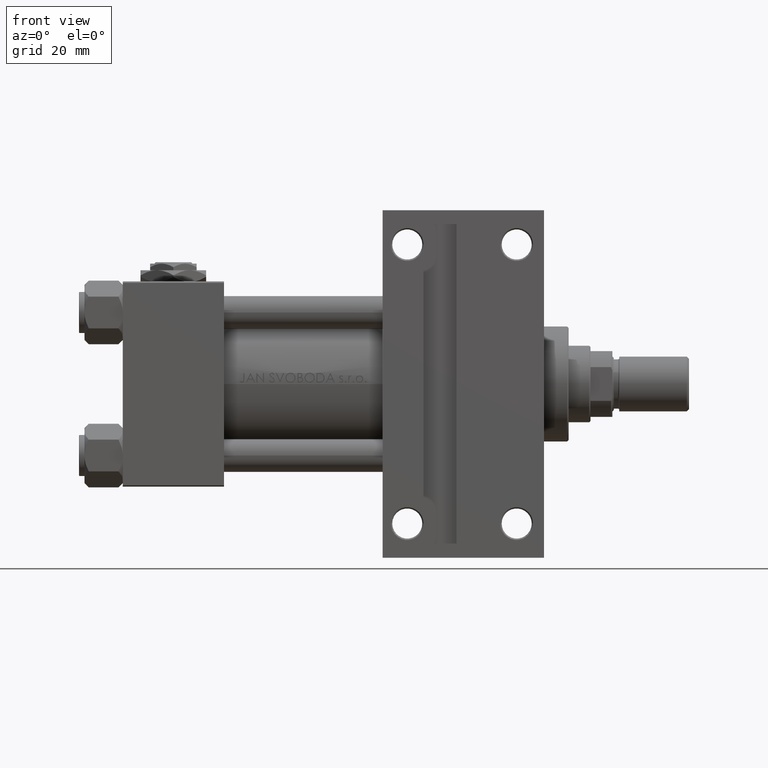
[diagram: clean part render]
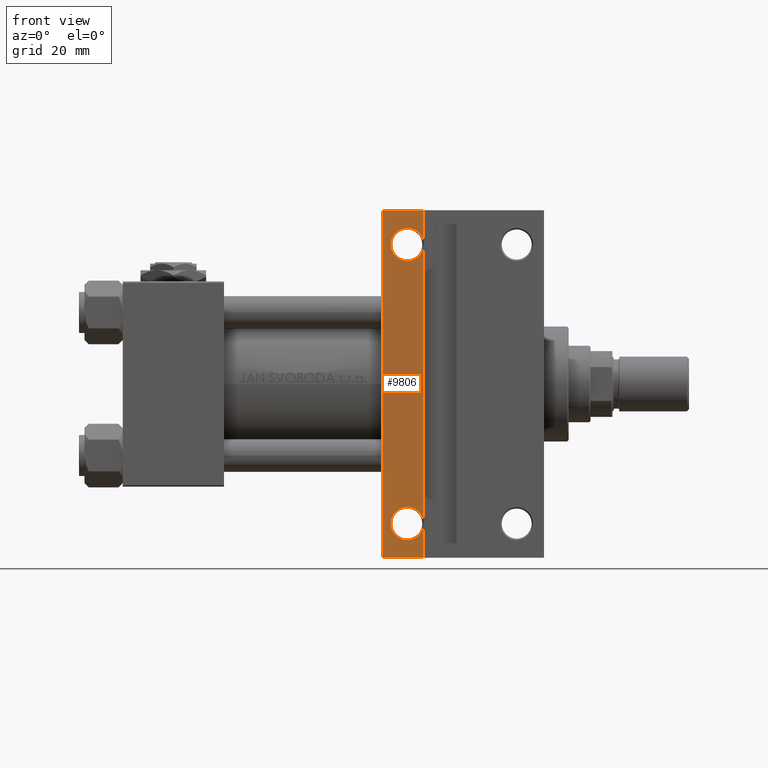
[diagram: same view with one face highlighted and labeled with its STEP entity id]
A machine part, front view. The second image highlights one B-rep face of the part: STEP entity #9806.
In plain terms, the highlighted planar face has unit normal (0, -1, 0).
Its self-contained STEP definition (entity closure, byte-faithful):
#175 = VERTEX_POINT ( 'NONE', #35389 ) ;
#488 = ORIENTED_EDGE ( 'NONE', *, *, #49625, .T. ) ;
#668 = CIRCLE ( 'NONE', #41982, 5.999500000000018929 ) ;
#1477 = CARTESIAN_POINT ( 'NONE',  ( 110.0000000000000000, -63.50000000000000000, -37.50000000000000000 ) ) ;
#1569 = CARTESIAN_POINT ( 'NONE',  ( 154.0000000000000000, 37.50000000000000000, -37.50000000000000000 ) ) ;
#1816 = DIRECTION ( 'NONE',  ( -1.000000000000000000, 0.000000000000000000, -0.000000000000000000 ) ) ;
#2768 = ORIENTED_EDGE ( 'NONE', *, *, #41274, .F. ) ;
#3067 = VERTEX_POINT ( 'NONE', #10807 ) ;
#4434 = VECTOR ( 'NONE', #5244, 1000.000000000000000 ) ;
#5244 = DIRECTION ( 'NONE',  ( 0.000000000000000000, -1.000000000000000000, 0.000000000000000000 ) ) ;
#5338 = ORIENTED_EDGE ( 'NONE', *, *, #21028, .T. ) ;
#5626 = FACE_OUTER_BOUND ( 'NONE', #6073, .T. ) ;
#6073 = EDGE_LOOP ( 'NONE', ( #2768, #5338, #6473, #488 ) ) ;
#6473 = ORIENTED_EDGE ( 'NONE', *, *, #50183, .F. ) ;
#8213 = DIRECTION ( 'NONE',  ( -0.000000000000000000, -0.000000000000000000, 1.000000000000000000 ) ) ;
#8464 = DIRECTION ( 'NONE',  ( -1.000000000000000000, 0.000000000000000000, 0.000000000000000000 ) ) ;
#9806 = ADVANCED_FACE ( 'NONE', ( #5626, #29467, #40377 ), #29212, .T. ) ;
#10028 = VECTOR ( 'NONE', #41364, 1000.000000000000000 ) ;
#10340 = CARTESIAN_POINT ( 'NONE',  ( 98.00049999999993133, -50.99999999999999289, -37.50000000000000000 ) ) ;
#10807 = CARTESIAN_POINT ( 'NONE',  ( 110.0000000000000000, -63.50000000000000000, -37.50000000000000000 ) ) ;
#12358 = VECTOR ( 'NONE', #44594, 1000.000000000000000 ) ;
#13122 = DIRECTION ( 'NONE',  ( -1.000000000000000000, 0.000000000000000000, 0.000000000000000000 ) ) ;
#14266 = CARTESIAN_POINT ( 'NONE',  ( 98.00049999999993133, 50.99999999999999289, -37.50000000000000000 ) ) ;
#17177 = CARTESIAN_POINT ( 'NONE',  ( 94.99999999999998579, -63.50000000000000000, -37.50000000000000000 ) ) ;
#19001 = ORIENTED_EDGE ( 'NONE', *, *, #28594, .T. ) ;
#19384 = CARTESIAN_POINT ( 'NONE',  ( 103.9999999999999574, 50.99999999999999289, -37.50000000000000000 ) ) ;
#19488 = EDGE_CURVE ( 'NONE', #175, #23121, #39594, .T. ) ;
#20998 = DIRECTION ( 'NONE',  ( -1.000000000000000000, 0.000000000000000000, 0.000000000000000000 ) ) ;
#21028 = EDGE_CURVE ( 'NONE', #3067, #27822, #33672, .T. ) ;
#22155 = VERTEX_POINT ( 'NONE', #29559 ) ;
#23121 = VERTEX_POINT ( 'NONE', #10340 ) ;
#24286 = LINE ( 'NONE', #31408, #4434 ) ;
#24351 = AXIS2_PLACEMENT_3D ( 'NONE', #19384, #8213, #8464 ) ;
#25488 = CARTESIAN_POINT ( 'NONE',  ( 109.9994999999999692, 50.99999999999999289, -37.50000000000000000 ) ) ;
#27297 = VECTOR ( 'NONE', #41015, 1000.000000000000000 ) ;
#27822 = VERTEX_POINT ( 'NONE', #17177 ) ;
#28594 = EDGE_CURVE ( 'NONE', #28914, #40676, #668, .T. ) ;
#28914 = VERTEX_POINT ( 'NONE', #25488 ) ;
#29108 = CARTESIAN_POINT ( 'NONE',  ( 94.99999999999998579, -63.50000000000000000, -37.50000000000000000 ) ) ;
#29212 = PLANE ( 'NONE',  #38451 ) ;
#29467 = FACE_BOUND ( 'NONE', #46907, .T. ) ;
#29559 = CARTESIAN_POINT ( 'NONE',  ( 95.00000000000000000, 63.50000000000000000, -37.50000000000000000 ) ) ;
#30029 = CIRCLE ( 'NONE', #24351, 5.999500000000018929 ) ;
#30206 = DIRECTION ( 'NONE',  ( -1.000000000000000000, 0.000000000000000000, 0.000000000000000000 ) ) ;
#30714 = EDGE_LOOP ( 'NONE', ( #48524, #31990 ) ) ;
#31408 = CARTESIAN_POINT ( 'NONE',  ( 95.00000000000000000, 37.50000000000000000, -37.50000000000000000 ) ) ;
#31990 = ORIENTED_EDGE ( 'NONE', *, *, #19488, .T. ) ;
#32169 = CARTESIAN_POINT ( 'NONE',  ( 103.9999999999999574, 50.99999999999999289, -37.50000000000000000 ) ) ;
#32933 = LINE ( 'NONE', #1477, #12358 ) ;
#33672 = LINE ( 'NONE', #29108, #27297 ) ;
#34034 = CARTESIAN_POINT ( 'NONE',  ( 110.0000000000000000, 63.50000000000000000, -37.50000000000000000 ) ) ;
#34613 = EDGE_CURVE ( 'NONE', #40676, #28914, #30029, .T. ) ;
#35389 = CARTESIAN_POINT ( 'NONE',  ( 109.9994999999999692, -50.99999999999999289, -37.50000000000000000 ) ) ;
#36579 = DIRECTION ( 'NONE',  ( 0.000000000000000000, 0.000000000000000000, -1.000000000000000000 ) ) ;
#37979 = VERTEX_POINT ( 'NONE', #34034 ) ;
#38451 = AXIS2_PLACEMENT_3D ( 'NONE', #1569, #36579, #1816 ) ;
#39170 = AXIS2_PLACEMENT_3D ( 'NONE', #46681, #49742, #30206 ) ;
#39594 = CIRCLE ( 'NONE', #46063, 5.999500000000018929 ) ;
#39991 = CIRCLE ( 'NONE', #39170, 5.999500000000018929 ) ;
#40275 = DIRECTION ( 'NONE',  ( -0.000000000000000000, -0.000000000000000000, 1.000000000000000000 ) ) ;
#40377 = FACE_BOUND ( 'NONE', #30714, .T. ) ;
#40511 = DIRECTION ( 'NONE',  ( -0.000000000000000000, -0.000000000000000000, 1.000000000000000000 ) ) ;
#40611 = LINE ( 'NONE', #41112, #10028 ) ;
#40676 = VERTEX_POINT ( 'NONE', #14266 ) ;
#41015 = DIRECTION ( 'NONE',  ( -1.000000000000000000, 4.704334850106596780E-16, -0.000000000000000000 ) ) ;
#41112 = CARTESIAN_POINT ( 'NONE',  ( 95.00000000000000000, 63.50000000000000000, -37.50000000000000000 ) ) ;
#41274 = EDGE_CURVE ( 'NONE', #3067, #37979, #32933, .T. ) ;
#41364 = DIRECTION ( 'NONE',  ( 1.000000000000000000, 0.000000000000000000, 0.000000000000000000 ) ) ;
#41982 = AXIS2_PLACEMENT_3D ( 'NONE', #32169, #40511, #13122 ) ;
#44594 = DIRECTION ( 'NONE',  ( 0.000000000000000000, 1.000000000000000000, 0.000000000000000000 ) ) ;
#45444 = ORIENTED_EDGE ( 'NONE', *, *, #34613, .T. ) ;
#46063 = AXIS2_PLACEMENT_3D ( 'NONE', #47882, #40275, #20998 ) ;
#46681 = CARTESIAN_POINT ( 'NONE',  ( 103.9999999999999574, -50.99999999999999289, -37.50000000000000000 ) ) ;
#46907 = EDGE_LOOP ( 'NONE', ( #45444, #19001 ) ) ;
#47882 = CARTESIAN_POINT ( 'NONE',  ( 103.9999999999999574, -50.99999999999999289, -37.50000000000000000 ) ) ;
#48360 = EDGE_CURVE ( 'NONE', #23121, #175, #39991, .T. ) ;
#48524 = ORIENTED_EDGE ( 'NONE', *, *, #48360, .T. ) ;
#49625 = EDGE_CURVE ( 'NONE', #22155, #37979, #40611, .T. ) ;
#49742 = DIRECTION ( 'NONE',  ( -0.000000000000000000, -0.000000000000000000, 1.000000000000000000 ) ) ;
#50183 = EDGE_CURVE ( 'NONE', #22155, #27822, #24286, .T. ) ;